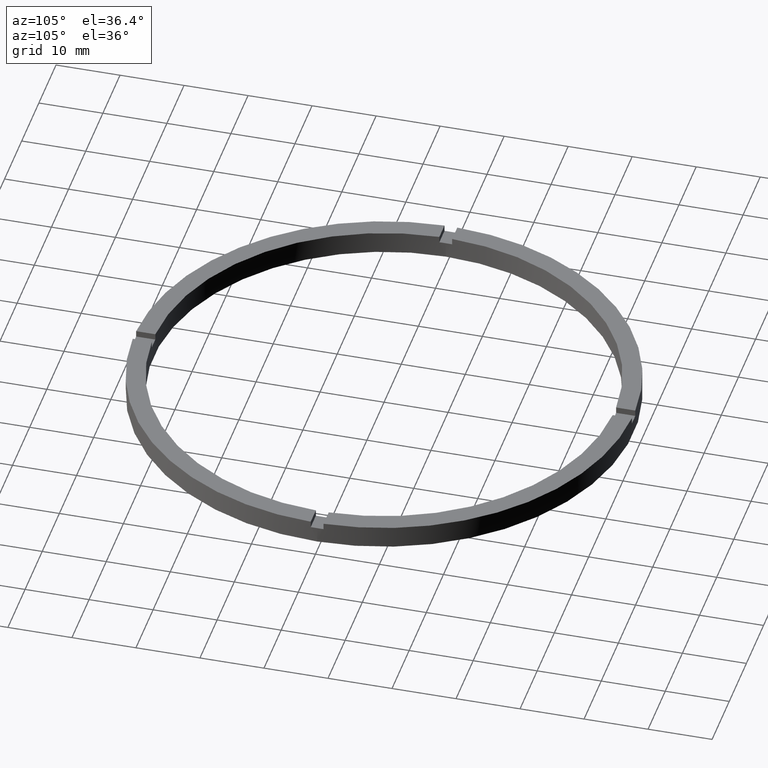
[diagram: clean part render]
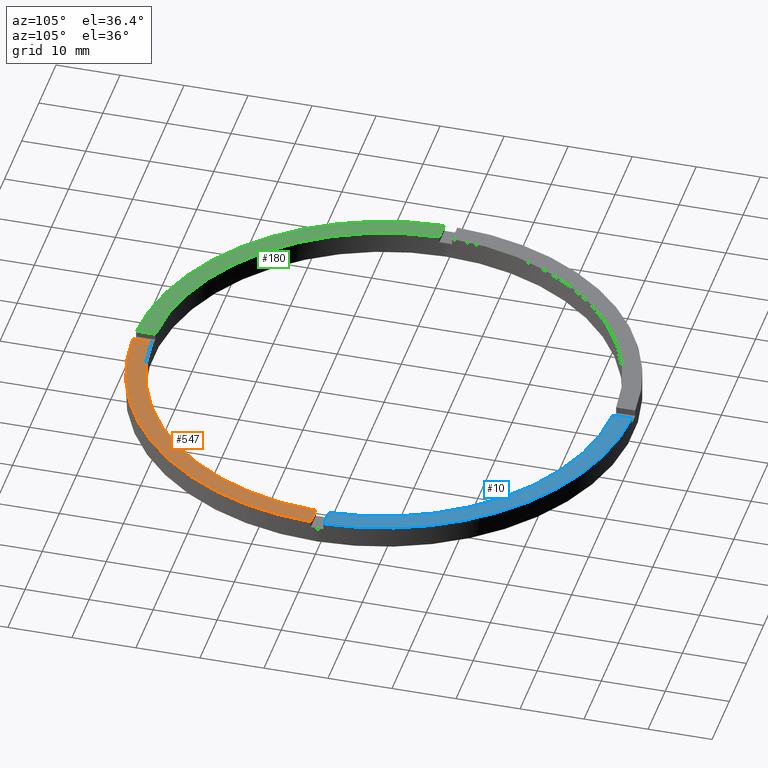
[diagram: same view with three faces highlighted in distinct colors, each labeled with its STEP entity id]
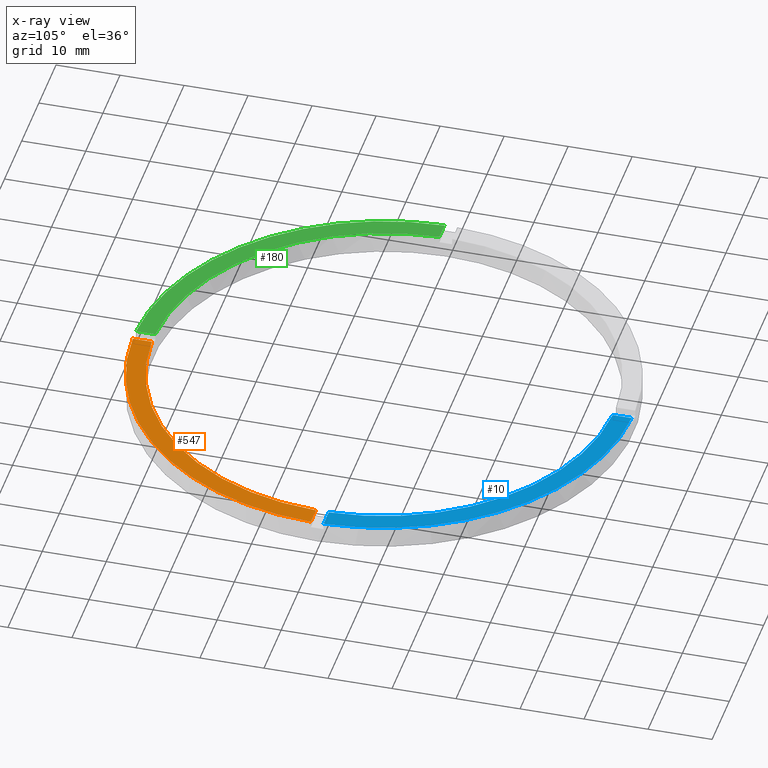
[diagram: x-ray of the same camera — body ghosted, the three highlighted faces saturated]
A machine part, auxiliary view with three faces highlighted in distinct colors.
The next image is the same camera in x-ray (body ghosted, the three faces saturated) — at least one of them is partly hidden behind the body in this view.
Their STEP definitions:

[orange] entity #547 — the highlighted planar face has unit normal (0, 0, 1).
#1 = DIRECTION ( 'NONE',  ( 1.000000000000000000, 0.000000000000000000, -0.000000000000000000 ) ) ;
#8 = CARTESIAN_POINT ( 'NONE',  ( 0.000000000000000000, 0.000000000000000000, 3.500000000000000000 ) ) ;
#25 = CARTESIAN_POINT ( 'NONE',  ( 0.9999999999998393507, -29.00000000000017764, 3.500000000000000000 ) ) ;
#44 = AXIS2_PLACEMENT_3D ( 'NONE', #8, #274, #601 ) ;
#90 = LINE ( 'NONE', #730, #604 ) ;
#100 = VECTOR ( 'NONE', #567, 1000.000000000000000 ) ;
#107 = LINE ( 'NONE', #25, #100 ) ;
#161 = ORIENTED_EDGE ( 'NONE', *, *, #712, .F. ) ;
#164 = VERTEX_POINT ( 'NONE', #672 ) ;
#169 = ORIENTED_EDGE ( 'NONE', *, *, #633, .F. ) ;
#191 = DIRECTION ( 'NONE',  ( 1.000000000000000000, 0.000000000000000000, 0.000000000000000000 ) ) ;
#199 = DIRECTION ( 'NONE',  ( 0.000000000000000000, 0.000000000000000000, 1.000000000000000000 ) ) ;
#259 = CARTESIAN_POINT ( 'NONE',  ( 35.98610843089315381, -1.000000000000157430, 3.500000000000000000 ) ) ;
#273 = CARTESIAN_POINT ( 'NONE',  ( 0.000000000000000000, 0.000000000000000000, 3.500000000000000000 ) ) ;
#274 = DIRECTION ( 'NONE',  ( 0.000000000000000000, 0.000000000000000000, 1.000000000000000000 ) ) ;
#276 = EDGE_CURVE ( 'NONE', #435, #164, #303, .T. ) ;
#299 = CARTESIAN_POINT ( 'NONE',  ( 0.9999999999998406830, -38.98717737923585958, 3.500000000000000000 ) ) ;
#303 = CIRCLE ( 'NONE', #44, 39.00000000000000000 ) ;
#360 = CIRCLE ( 'NONE', #781, 36.00000000000000000 ) ;
#363 = CARTESIAN_POINT ( 'NONE',  ( 0.9999999999998404610, -35.98610843089316091, 3.500000000000000000 ) ) ;
#411 = VERTEX_POINT ( 'NONE', #259 ) ;
#415 = VERTEX_POINT ( 'NONE', #363 ) ;
#417 = DIRECTION ( 'NONE',  ( 1.000000000000000000, 6.505213034913025371E-17, 0.000000000000000000 ) ) ;
#435 = VERTEX_POINT ( 'NONE', #299 ) ;
#547 = ADVANCED_FACE ( 'NONE', ( #596 ), #582, .T. ) ;
#567 = DIRECTION ( 'NONE',  ( -1.301042606982605074E-16, 1.000000000000000000, -0.000000000000000000 ) ) ;
#582 = PLANE ( 'NONE',  #624 ) ;
#596 = FACE_OUTER_BOUND ( 'NONE', #727, .T. ) ;
#601 = DIRECTION ( 'NONE',  ( 1.000000000000000000, 0.000000000000000000, 0.000000000000000000 ) ) ;
#604 = VECTOR ( 'NONE', #417, 1000.000000000000000 ) ;
#624 = AXIS2_PLACEMENT_3D ( 'NONE', #771, #707, #1 ) ;
#633 = EDGE_CURVE ( 'NONE', #411, #164, #90, .T. ) ;
#653 = EDGE_CURVE ( 'NONE', #415, #411, #360, .T. ) ;
#670 = ORIENTED_EDGE ( 'NONE', *, *, #276, .T. ) ;
#672 = CARTESIAN_POINT ( 'NONE',  ( 38.98717737923584536, -1.000000000000157208, 3.500000000000000000 ) ) ;
#707 = DIRECTION ( 'NONE',  ( 0.000000000000000000, 0.000000000000000000, 1.000000000000000000 ) ) ;
#711 = ORIENTED_EDGE ( 'NONE', *, *, #653, .F. ) ;
#712 = EDGE_CURVE ( 'NONE', #435, #415, #107, .T. ) ;
#727 = EDGE_LOOP ( 'NONE', ( #169, #711, #161, #670 ) ) ;
#730 = CARTESIAN_POINT ( 'NONE',  ( 28.99999999999998934, -1.000000000000157874, 3.500000000000000000 ) ) ;
#771 = CARTESIAN_POINT ( 'NONE',  ( 0.000000000000000000, 0.000000000000000000, 3.500000000000000000 ) ) ;
#781 = AXIS2_PLACEMENT_3D ( 'NONE', #273, #199, #191 ) ;

[blue] entity #10 — the highlighted planar face has unit normal (0, 0, 1).
#10 = ADVANCED_FACE ( 'NONE', ( #408 ), #109, .T. ) ;
#34 = VECTOR ( 'NONE', #267, 1000.000000000000000 ) ;
#53 = AXIS2_PLACEMENT_3D ( 'NONE', #120, #574, #177 ) ;
#88 = VECTOR ( 'NONE', #484, 1000.000000000000000 ) ;
#95 = EDGE_CURVE ( 'NONE', #735, #197, #285, .T. ) ;
#109 = PLANE ( 'NONE',  #53 ) ;
#120 = CARTESIAN_POINT ( 'NONE',  ( 0.000000000000000000, 0.000000000000000000, 3.500000000000000000 ) ) ;
#135 = CARTESIAN_POINT ( 'NONE',  ( 0.9999999999999746869, 38.98717737923585247, 3.500000000000000000 ) ) ;
#151 = AXIS2_PLACEMENT_3D ( 'NONE', #221, #211, #388 ) ;
#163 = EDGE_CURVE ( 'NONE', #735, #739, #300, .T. ) ;
#177 = DIRECTION ( 'NONE',  ( 1.000000000000000000, 0.000000000000000000, -0.000000000000000000 ) ) ;
#183 = ORIENTED_EDGE ( 'NONE', *, *, #163, .T. ) ;
#194 = CARTESIAN_POINT ( 'NONE',  ( 28.99999999999998934, 0.9999999999998421263, 3.500000000000000000 ) ) ;
#197 = VERTEX_POINT ( 'NONE', #529 ) ;
#211 = DIRECTION ( 'NONE',  ( 0.000000000000000000, 0.000000000000000000, 1.000000000000000000 ) ) ;
#221 = CARTESIAN_POINT ( 'NONE',  ( 0.000000000000000000, 0.000000000000000000, 3.500000000000000000 ) ) ;
#231 = VERTEX_POINT ( 'NONE', #702 ) ;
#267 = DIRECTION ( 'NONE',  ( -1.000000000000000000, -6.505213034913025371E-17, -0.000000000000000000 ) ) ;
#278 = CARTESIAN_POINT ( 'NONE',  ( 38.98717737923585958, 0.9999999999998427924, 3.500000000000000000 ) ) ;
#285 = LINE ( 'NONE', #194, #34 ) ;
#300 = CIRCLE ( 'NONE', #151, 39.00000000000000000 ) ;
#312 = AXIS2_PLACEMENT_3D ( 'NONE', #313, #368, #477 ) ;
#313 = CARTESIAN_POINT ( 'NONE',  ( 0.000000000000000000, 0.000000000000000000, 3.500000000000000000 ) ) ;
#320 = CARTESIAN_POINT ( 'NONE',  ( 0.9999999999999746869, 28.99999999999999645, 3.500000000000000000 ) ) ;
#351 = LINE ( 'NONE', #320, #88 ) ;
#368 = DIRECTION ( 'NONE',  ( 0.000000000000000000, 0.000000000000000000, 1.000000000000000000 ) ) ;
#388 = DIRECTION ( 'NONE',  ( 1.000000000000000000, 0.000000000000000000, 0.000000000000000000 ) ) ;
#408 = FACE_OUTER_BOUND ( 'NONE', #472, .T. ) ;
#460 = ORIENTED_EDGE ( 'NONE', *, *, #95, .F. ) ;
#472 = EDGE_LOOP ( 'NONE', ( #506, #764, #460, #183 ) ) ;
#477 = DIRECTION ( 'NONE',  ( 1.000000000000000000, 0.000000000000000000, 0.000000000000000000 ) ) ;
#484 = DIRECTION ( 'NONE',  ( 0.000000000000000000, 1.000000000000000000, 0.000000000000000000 ) ) ;
#506 = ORIENTED_EDGE ( 'NONE', *, *, #623, .F. ) ;
#529 = CARTESIAN_POINT ( 'NONE',  ( 35.98610843089316091, 0.9999999999998425704, 3.500000000000000000 ) ) ;
#550 = EDGE_CURVE ( 'NONE', #197, #231, #599, .T. ) ;
#574 = DIRECTION ( 'NONE',  ( 0.000000000000000000, 0.000000000000000000, 1.000000000000000000 ) ) ;
#599 = CIRCLE ( 'NONE', #312, 36.00000000000000000 ) ;
#623 = EDGE_CURVE ( 'NONE', #231, #739, #351, .T. ) ;
#702 = CARTESIAN_POINT ( 'NONE',  ( 0.9999999999999746869, 35.98610843089316091, 3.500000000000000000 ) ) ;
#735 = VERTEX_POINT ( 'NONE', #278 ) ;
#739 = VERTEX_POINT ( 'NONE', #135 ) ;
#764 = ORIENTED_EDGE ( 'NONE', *, *, #550, .F. ) ;

[green] entity #180 — the highlighted planar face has unit normal (0, 0, 1).
#20 = LINE ( 'NONE', #316, #551 ) ;
#30 = FACE_OUTER_BOUND ( 'NONE', #708, .T. ) ;
#125 = DIRECTION ( 'NONE',  ( 0.000000000000000000, 0.000000000000000000, 1.000000000000000000 ) ) ;
#129 = AXIS2_PLACEMENT_3D ( 'NONE', #131, #184, #536 ) ;
#131 = CARTESIAN_POINT ( 'NONE',  ( 0.000000000000000000, 0.000000000000000000, 3.500000000000000000 ) ) ;
#147 = PLANE ( 'NONE',  #330 ) ;
#170 = CARTESIAN_POINT ( 'NONE',  ( -1.000000000000159650, -35.98610843089315381, 3.500000000000000000 ) ) ;
#180 = ADVANCED_FACE ( 'NONE', ( #30 ), #147, .T. ) ;
#184 = DIRECTION ( 'NONE',  ( 0.000000000000000000, 0.000000000000000000, 1.000000000000000000 ) ) ;
#203 = ORIENTED_EDGE ( 'NONE', *, *, #215, .F. ) ;
#215 = EDGE_CURVE ( 'NONE', #226, #399, #20, .T. ) ;
#226 = VERTEX_POINT ( 'NONE', #423 ) ;
#293 = CARTESIAN_POINT ( 'NONE',  ( -1.000000000000159428, -38.98717737923584536, 3.500000000000000000 ) ) ;
#315 = CARTESIAN_POINT ( 'NONE',  ( -35.98610843089315381, -1.000000000000027311, 3.500000000000000000 ) ) ;
#316 = CARTESIAN_POINT ( 'NONE',  ( -29.00000000000018474, -1.000000000000025979, 3.500000000000000000 ) ) ;
#321 = DIRECTION ( 'NONE',  ( 1.000000000000000000, 0.000000000000000000, 0.000000000000000000 ) ) ;
#324 = AXIS2_PLACEMENT_3D ( 'NONE', #433, #509, #321 ) ;
#330 = AXIS2_PLACEMENT_3D ( 'NONE', #418, #125, #654 ) ;
#331 = LINE ( 'NONE', #617, #333 ) ;
#333 = VECTOR ( 'NONE', #669, 1000.000000000000000 ) ;
#352 = EDGE_CURVE ( 'NONE', #410, #476, #331, .T. ) ;
#399 = VERTEX_POINT ( 'NONE', #315 ) ;
#410 = VERTEX_POINT ( 'NONE', #170 ) ;
#412 = ORIENTED_EDGE ( 'NONE', *, *, #352, .F. ) ;
#418 = CARTESIAN_POINT ( 'NONE',  ( 0.000000000000000000, 0.000000000000000000, 3.500000000000000000 ) ) ;
#423 = CARTESIAN_POINT ( 'NONE',  ( -38.98717737923585247, -1.000000000000027978, 3.500000000000000000 ) ) ;
#433 = CARTESIAN_POINT ( 'NONE',  ( 0.000000000000000000, 0.000000000000000000, 3.500000000000000000 ) ) ;
#445 = ORIENTED_EDGE ( 'NONE', *, *, #766, .T. ) ;
#476 = VERTEX_POINT ( 'NONE', #293 ) ;
#509 = DIRECTION ( 'NONE',  ( 0.000000000000000000, 0.000000000000000000, 1.000000000000000000 ) ) ;
#536 = DIRECTION ( 'NONE',  ( 1.000000000000000000, 0.000000000000000000, 0.000000000000000000 ) ) ;
#551 = VECTOR ( 'NONE', #650, 1000.000000000000000 ) ;
#554 = EDGE_CURVE ( 'NONE', #399, #410, #584, .T. ) ;
#584 = CIRCLE ( 'NONE', #129, 36.00000000000000000 ) ;
#617 = CARTESIAN_POINT ( 'NONE',  ( -1.000000000000160760, -29.00000000000017764, 3.500000000000000000 ) ) ;
#620 = CIRCLE ( 'NONE', #324, 39.00000000000000000 ) ;
#650 = DIRECTION ( 'NONE',  ( 1.000000000000000000, 1.951563910473907735E-16, -0.000000000000000000 ) ) ;
#654 = DIRECTION ( 'NONE',  ( 1.000000000000000000, 0.000000000000000000, -0.000000000000000000 ) ) ;
#666 = ORIENTED_EDGE ( 'NONE', *, *, #554, .F. ) ;
#669 = DIRECTION ( 'NONE',  ( 1.301042606982605074E-16, -1.000000000000000000, 0.000000000000000000 ) ) ;
#708 = EDGE_LOOP ( 'NONE', ( #412, #666, #203, #445 ) ) ;
#766 = EDGE_CURVE ( 'NONE', #226, #476, #620, .T. ) ;